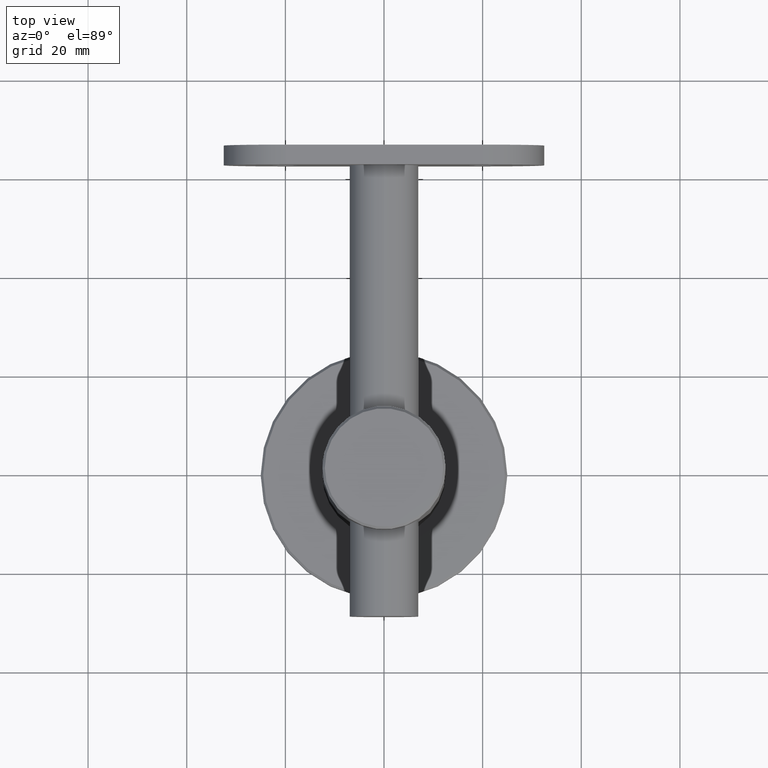
[diagram: clean part render]
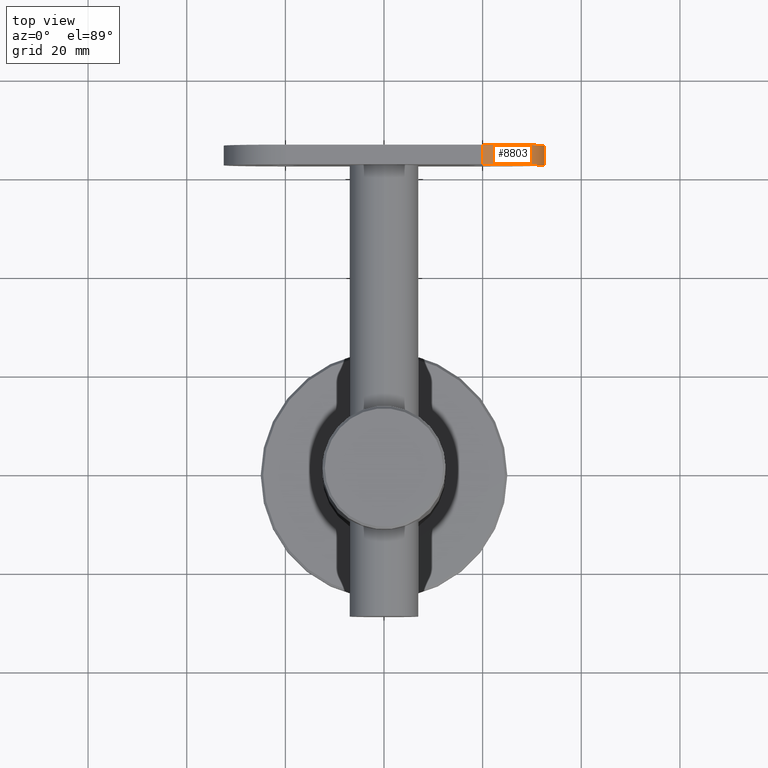
[diagram: same view with one face highlighted and labeled with its STEP entity id]
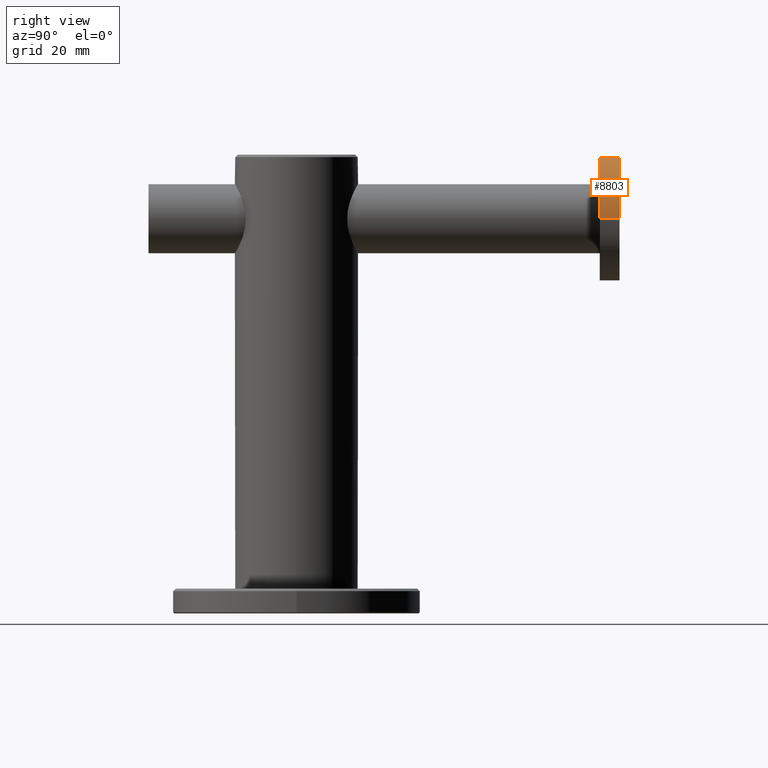
[diagram: same view with one face highlighted and labeled with its STEP entity id]
A machine part, top view. The second image highlights one B-rep face of the part: STEP entity #8803.
A second angle (right view) of the same face is appended — the face is thin or edge-on in the first view.
In plain terms, the highlighted cylindrical surface (partial cylindrical patch) has radius 12.5 mm, axis along (-0, -1, -0).
Its self-contained STEP definition (entity closure, byte-faithful):
#55 = CARTESIAN_POINT ( 'NONE',  ( 0.0000000000000000000, -3.469446951953614200E-015, -32.50000000000000000 ) ) ;
#120 = VECTOR ( 'NONE', #11925, 1000.000000000000000 ) ;
#981 = VERTEX_POINT ( 'NONE', #4517 ) ;
#1200 = CARTESIAN_POINT ( 'NONE',  ( 12.50000000000000000, -3.370833141065685400E-015, -20.00000000000000400 ) ) ;
#1387 = DIRECTION ( 'NONE',  ( 0.0000000000000000000, 0.0000000000000000000, -1.000000000000000000 ) ) ;
#2316 = CARTESIAN_POINT ( 'NONE',  ( 0.0000000000000000000, 3.999999999999996400, -20.00000000000000400 ) ) ;
#3108 = DIRECTION ( 'NONE',  ( 0.0000000000000000000, 1.000000000000000000, 0.0000000000000000000 ) ) ;
#3502 = ORIENTED_EDGE ( 'NONE', *, *, #6766, .F. ) ;
#3793 = DIRECTION ( 'NONE',  ( 0.0000000000000000000, -1.000000000000000000, 0.0000000000000000000 ) ) ;
#4142 = EDGE_CURVE ( 'NONE', #18730, #8479, #5420, .T. ) ;
#4506 = EDGE_CURVE ( 'NONE', #14831, #981, #10485, .T. ) ;
#4517 = CARTESIAN_POINT ( 'NONE',  ( 12.50000000000000000, 3.999999999999996400, -20.00000000000000400 ) ) ;
#4785 = DIRECTION ( 'NONE',  ( -0.0000000000000000000, -1.000000000000000000, 0.0000000000000000000 ) ) ;
#4836 = FACE_OUTER_BOUND ( 'NONE', #7129, .T. ) ;
#4912 = DIRECTION ( 'NONE',  ( 0.0000000000000000000, 0.0000000000000000000, 1.000000000000000000 ) ) ;
#5420 = LINE ( 'NONE', #55, #120 ) ;
#5840 = ORIENTED_EDGE ( 'NONE', *, *, #7510, .F. ) ;
#6766 = EDGE_CURVE ( 'NONE', #8479, #14831, #10467, .T. ) ;
#7129 = EDGE_LOOP ( 'NONE', ( #17898, #5840, #17835, #3502 ) ) ;
#7258 = CARTESIAN_POINT ( 'NONE',  ( 0.0000000000000000000, 3.999999999999996400, -20.00000000000000400 ) ) ;
#7510 = EDGE_CURVE ( 'NONE', #981, #18730, #17187, .T. ) ;
#7560 = CARTESIAN_POINT ( 'NONE',  ( 0.0000000000000000000, -3.370833141065685400E-015, -32.50000000000000000 ) ) ;
#7845 = CARTESIAN_POINT ( 'NONE',  ( 0.0000000000000000000, -3.469446951953614200E-015, -20.00000000000000400 ) ) ;
#8261 = DIRECTION ( 'NONE',  ( 0.0000000000000000000, 0.0000000000000000000, -1.000000000000000000 ) ) ;
#8479 = VERTEX_POINT ( 'NONE', #7560 ) ;
#8753 = DIRECTION ( 'NONE',  ( -0.0000000000000000000, 1.000000000000000000, -0.0000000000000000000 ) ) ;
#8803 = ADVANCED_FACE ( 'NONE', ( #4836 ), #19146, .T. ) ;
#9034 = CARTESIAN_POINT ( 'NONE',  ( 12.50000000000000000, 3.999999999999996400, -20.00000000000000400 ) ) ;
#10467 = CIRCLE ( 'NONE', #16991, 12.50000000000000000 ) ;
#10485 = LINE ( 'NONE', #9034, #14866 ) ;
#11925 = DIRECTION ( 'NONE',  ( -0.0000000000000000000, -1.000000000000000000, -0.0000000000000000000 ) ) ;
#12739 = AXIS2_PLACEMENT_3D ( 'NONE', #7258, #8753, #1387 ) ;
#14831 = VERTEX_POINT ( 'NONE', #1200 ) ;
#14866 = VECTOR ( 'NONE', #3108, 1000.000000000000000 ) ;
#15364 = AXIS2_PLACEMENT_3D ( 'NONE', #2316, #3793, #8261 ) ;
#16991 = AXIS2_PLACEMENT_3D ( 'NONE', #7845, #4785, #4912 ) ;
#17043 = CARTESIAN_POINT ( 'NONE',  ( 0.0000000000000000000, 3.999999999999996400, -32.50000000000000000 ) ) ;
#17187 = CIRCLE ( 'NONE', #12739, 12.49999999999999600 ) ;
#17835 = ORIENTED_EDGE ( 'NONE', *, *, #4506, .F. ) ;
#17898 = ORIENTED_EDGE ( 'NONE', *, *, #4142, .F. ) ;
#18730 = VERTEX_POINT ( 'NONE', #17043 ) ;
#19146 = CYLINDRICAL_SURFACE ( 'NONE', #15364, 12.49999999999999600 ) ;